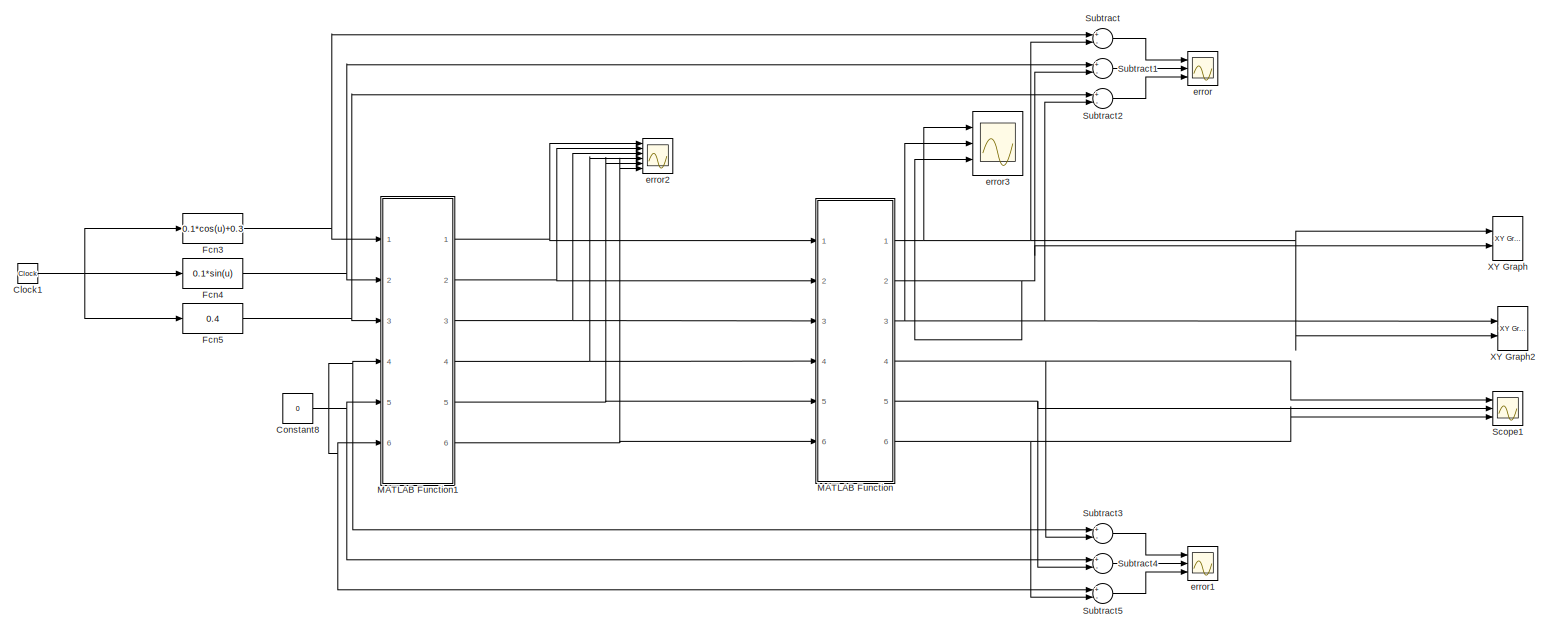
[diagram: root canvas - part 1/1, most of the canvas]
MODEL slx_f7196f34413f
KIND model
CONFIG AbsTol = auto
CONFIG EnableMultiTasking = off
CONFIG FixedStep = auto
CONFIG MaxStep = auto
CONFIG MinStep = auto
CONFIG RelTol = 1e-3
CONFIG SampleTimeConstraint = Unconstrained
CONFIG Solver = VariableStepAuto
CONFIG SolverName = VariableStepAuto
CONFIG StartTime = 0.0
CONFIG StopTime = 10
BLOCK [Clock] Clock1
BLOCK [Constant] Constant8
  Value = 0
BLOCK [Fcn] Fcn3
  Expr = 0.1*cos(u)+0.3
BLOCK [Fcn] Fcn4
  Expr = 0.1*sin(u)
BLOCK [Fcn] Fcn5
  Expr = 0.4
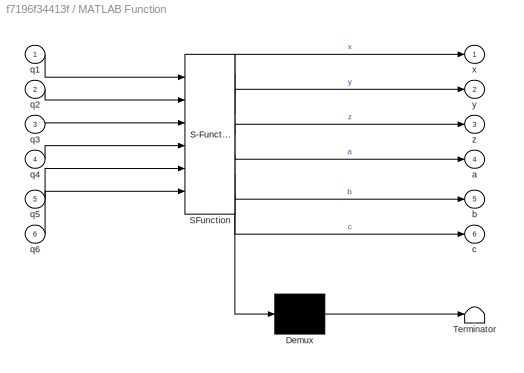
BLOCK [SubSystem] MATLAB Function
  ErrorFcn = Stateflow.Translate.translate
  PermitHierarchicalResolution = ExplicitOnly
  Ports = [6, 6]
  RequestExecContextInheritance = off
  SFBlockType = MATLAB Function
  TreatAsAtomicUnit = on
BLOCK [Demux] MATLAB Function/ Demux 
  Outputs = 1
  Ports = [1, 1]
BLOCK [S-Function] MATLAB Function/ SFunction 
  EnableBusSupport = on
  FunctionName = sf_sfun
  PortCounts = [6 7]
  Ports = [6, 7]
  SFcnIsStateOwnerBlock = off
  SFunctionDeploymentMode = off
  Tag = Stateflow S-Function main 2
BLOCK [Terminator] MATLAB Function/ Terminator 
BLOCK [Outport] MATLAB Function/a
  IconDisplay = Port number
  Port = 4
BLOCK [Outport] MATLAB Function/b
  IconDisplay = Port number
  Port = 5
BLOCK [Outport] MATLAB Function/c
  IconDisplay = Port number
  Port = 6
BLOCK [Inport] MATLAB Function/q1
  IconDisplay = Port number
BLOCK [Inport] MATLAB Function/q2
  IconDisplay = Port number
  Port = 2
BLOCK [Inport] MATLAB Function/q3
  IconDisplay = Port number
  Port = 3
BLOCK [Inport] MATLAB Function/q4
  IconDisplay = Port number
  Port = 4
BLOCK [Inport] MATLAB Function/q5
  IconDisplay = Port number
  Port = 5
BLOCK [Inport] MATLAB Function/q6
  IconDisplay = Port number
  Port = 6
BLOCK [Outport] MATLAB Function/x
  IconDisplay = Port number
BLOCK [Outport] MATLAB Function/y
  IconDisplay = Port number
  Port = 2
BLOCK [Outport] MATLAB Function/z
  IconDisplay = Port number
  Port = 3
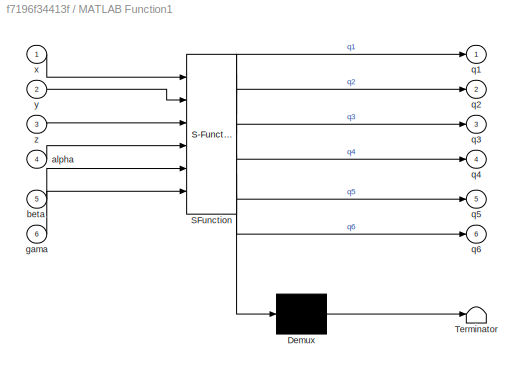
BLOCK [SubSystem] MATLAB Function1
  ErrorFcn = Stateflow.Translate.translate
  PermitHierarchicalResolution = ExplicitOnly
  Ports = [6, 6]
  RequestExecContextInheritance = off
  SFBlockType = MATLAB Function
  TreatAsAtomicUnit = on
BLOCK [Demux] MATLAB Function1/ Demux 
  Outputs = 1
  Ports = [1, 1]
BLOCK [S-Function] MATLAB Function1/ SFunction 
  EnableBusSupport = on
  FunctionName = sf_sfun
  PortCounts = [6 7]
  Ports = [6, 7]
  SFcnIsStateOwnerBlock = off
  SFunctionDeploymentMode = off
  Tag = Stateflow S-Function main 3
BLOCK [Terminator] MATLAB Function1/ Terminator 
BLOCK [Inport] MATLAB Function1/alpha
  IconDisplay = Port number
  Port = 4
BLOCK [Inport] MATLAB Function1/beta
  IconDisplay = Port number
  Port = 5
BLOCK [Inport] MATLAB Function1/gama
  IconDisplay = Port number
  Port = 6
BLOCK [Outport] MATLAB Function1/q1
  IconDisplay = Port number
BLOCK [Outport] MATLAB Function1/q2
  IconDisplay = Port number
  Port = 2
BLOCK [Outport] MATLAB Function1/q3
  IconDisplay = Port number
  Port = 3
BLOCK [Outport] MATLAB Function1/q4
  IconDisplay = Port number
  Port = 4
BLOCK [Outport] MATLAB Function1/q5
  IconDisplay = Port number
  Port = 5
BLOCK [Outport] MATLAB Function1/q6
  IconDisplay = Port number
  Port = 6
BLOCK [Inport] MATLAB Function1/x
  IconDisplay = Port number
BLOCK [Inport] MATLAB Function1/y
  IconDisplay = Port number
  Port = 2
BLOCK [Inport] MATLAB Function1/z
  IconDisplay = Port number
  Port = 3
BLOCK [Scope] Scope1
  Floating = off
  NumInputPorts = 3
  Ports = [3]
  ScopeSpecificationString = Simulink.scopes.TimeScopeBlockCfg('CurrentConfiguration', extmgr.ConfigurationSet(extmgr.Configuration('Core','General UI',true),extmgr.Configuration('Core','Source UI',true),extmgr.Configuration('Sources','WiredSimulink',true,'DataLoggingVariableName','ScopeData1'),extmgr.Configuration('Visuals','Time Domain',true,'SerializedDisplays',{struct('MinYLimReal','0.65778','MaxYLimReal','1.934','YLabelR...<+1406ch>
BLOCK [Sum] Subtract
  InputSameDT = off
  Inputs = +-
  OutDataTypeStr = Inherit: Inherit via internal rule
  Ports = [2, 1]
  SaturateOnIntegerOverflow = off
BLOCK [Sum] Subtract1
  InputSameDT = off
  Inputs = +-
  OutDataTypeStr = Inherit: Inherit via internal rule
  Ports = [2, 1]
  SaturateOnIntegerOverflow = off
BLOCK [Sum] Subtract2
  InputSameDT = off
  Inputs = +-
  OutDataTypeStr = Inherit: Inherit via internal rule
  Ports = [2, 1]
  SaturateOnIntegerOverflow = off
BLOCK [Sum] Subtract3
  InputSameDT = off
  Inputs = +-
  OutDataTypeStr = Inherit: Inherit via internal rule
  Ports = [2, 1]
  SaturateOnIntegerOverflow = off
BLOCK [Sum] Subtract4
  InputSameDT = off
  Inputs = +-
  OutDataTypeStr = Inherit: Inherit via internal rule
  Ports = [2, 1]
  SaturateOnIntegerOverflow = off
BLOCK [Sum] Subtract5
  InputSameDT = off
  Inputs = +-
  OutDataTypeStr = Inherit: Inherit via internal rule
  Ports = [2, 1]
  SaturateOnIntegerOverflow = off
BLOCK [Reference] XY Graph  REF=simulink/Sinks/XY Graph
  Ports = [2]
  SourceBlock = simulink/Sinks/XY Graph
  SourceProductBaseCode = SL
  SourceProductName = Simulink
  SourceType = XY scope.
BLOCK [Reference] XY Graph2  REF=simulink/Sinks/XY Graph
  Ports = [2]
  SourceBlock = simulink/Sinks/XY Graph
  SourceProductBaseCode = SL
  SourceProductName = Simulink
  SourceType = XY scope.
BLOCK [Scope] error
  Floating = off
  NumInputPorts = 3
  Ports = [3]
  ScopeSpecificationString = Simulink.scopes.TimeScopeBlockCfg('CurrentConfiguration', extmgr.ConfigurationSet(extmgr.Configuration('Core','General UI',true),extmgr.Configuration('Core','Source UI',true),extmgr.Configuration('Sources','WiredSimulink',true,'DataLoggingVariableName','ScopeData1'),extmgr.Configuration('Visuals','Time Domain',true,'SerializedDisplays',{struct('MinYLimReal','-0.69249','MaxYLimReal','1.00534','YLab...<+1391ch>
BLOCK [Scope] error1
  Floating = off
  NumInputPorts = 3
  Ports = [3]
  ScopeSpecificationString = Simulink.scopes.TimeScopeBlockCfg('CurrentConfiguration', extmgr.ConfigurationSet(extmgr.Configuration('Core','General UI',true),extmgr.Configuration('Core','Source UI',true),extmgr.Configuration('Sources','WiredSimulink',true,'DataLoggingVariableName','ScopeData2'),extmgr.Configuration('Visuals','Time Domain',true,'SerializedDisplays',{struct('MinYLimReal','-1.934','MaxYLimReal','-0.65778','YLabe...<+1386ch>
BLOCK [Scope] error2
  Floating = off
  NumInputPorts = 6
  Ports = [6]
  ScopeSpecificationString = Simulink.scopes.TimeScopeBlockCfg('CurrentConfiguration', extmgr.ConfigurationSet(extmgr.Configuration('Core','General UI',true),extmgr.Configuration('Core','Source UI',true),extmgr.Configuration('Sources','WiredSimulink',true,'DataLoggingVariableName','ScopeData1'),extmgr.Configuration('Visuals','Time Domain',true,'SerializedDisplays',{struct('MinYLimReal','-4.95035','MaxYLimReal','4.41829','YLab...<+1488ch>
BLOCK [Scope] error3
  Floating = off
  NumInputPorts = 3
  Ports = [3]
  ScopeSpecificationString = Simulink.scopes.TimeScopeBlockCfg('CurrentConfiguration', extmgr.ConfigurationSet(extmgr.Configuration('Core','General UI',true),extmgr.Configuration('Core','Source UI',true),extmgr.Configuration('Sources','WiredSimulink',true,'DataLoggingVariableName','ScopeData2'),extmgr.Configuration('Visuals','Time Domain',true,'SerializedDisplays',{struct('MinYLimReal','-0.54626','MaxYLimReal','1.16407','YLab...<+1416ch>
NET Clock1:1 -> Fcn3:1, Fcn4:1, Fcn5:1
NET Constant8:1 -> MATLAB Function1:4, MATLAB Function1:5, MATLAB Function1:6, Subtract3:1, Subtract4:1, Subtract5:1
NET Fcn3:1 -> MATLAB Function1:1, Subtract:1
NET Fcn4:1 -> MATLAB Function1:2, Subtract1:1
NET Fcn5:1 -> MATLAB Function1:3, Subtract2:1
NET MATLAB Function1:1 -> MATLAB Function:1, error2:1
NET MATLAB Function1:2 -> MATLAB Function:2, error2:2
NET MATLAB Function1:3 -> MATLAB Function:3, error2:3
NET MATLAB Function1:4 -> MATLAB Function:4, error2:4
NET MATLAB Function1:5 -> MATLAB Function:5, error2:5
NET MATLAB Function1:6 -> MATLAB Function:6, error2:6
NET MATLAB Function:1 -> Subtract:2, XY Graph2:2, XY Graph:1, error3:1
NET MATLAB Function:2 -> Subtract1:2, XY Graph:2, error3:3
NET MATLAB Function:3 -> Subtract2:2, XY Graph2:1, error3:2
NET MATLAB Function:4 -> Scope1:1, Subtract3:2
NET MATLAB Function:5 -> Scope1:2, Subtract4:2
NET MATLAB Function:6 -> Scope1:3, Subtract5:2
LINE Subtract1:1 -> error:2
LINE Subtract2:1 -> error:3
LINE Subtract3:1 -> error1:1
LINE Subtract4:1 -> error1:2
LINE Subtract5:1 -> error1:3
LINE Subtract:1 -> error:1
note: NET lines group one-source signal fan-out (src -> all destinations, sorted); 1:1 wires keep LINE
CHART MATLAB Function states=1 transitions=1
  STATE_LABEL 'eML_blk_kernel()'
  STATE_LABEL 'SCRIPT:\nfunction [x,y,z,a,b,c] = FK(q1,q2,q3,q4,q5,q6)\n\n% -------------DH_Parametrs--------------------\na0 = 0;     d1 = 0.352;      alpha0 = 0;\na1 = 0.07;    d2 = 0;        alpha1 = -pi/2;\na2 = 0.36;   d3 = 0;        alpha2 = 0;\na3 = 0;     d4 = 0.380;      alpha3 = -pi/2;\na4 = 0;     d5 = 0;        alpha4 = pi/2;\na5 = 0;     d6 = 0;        alpha5 = -pi/2;\n\ntheta1 =q1;\ntheta2 =q2;\ntheta3 =q3;\nthe...<+1119ch>'
CHART MATLAB Function1 states=1 transitions=1
  STATE_LABEL 'eML_blk_kernel()'
  STATE_LABEL 'SCRIPT:\nfunction [q1,q2,q3,q4,q5,q6] = IK_IRB140(x,y,z,alpha,beta,gama) \n% x=0.3;\n% y=0.3;\n% z=0.2;\n% alpha=0;\n% beta=0;\n% gama=0;\n\nd1 = 0.352;\na1 = 0.070;\na2 = 0.360;\nd4 = 0.380;\nd6=0.065;\nq1=0;\nq2=0;\nq3=0;\nq4=0;\nq5=0;\nq6=0;\n\nNOSOLUTION=1000;\n\nQ1= atan2 (y,x);\nQ11= pi + Q1;\n\n\ns = (z - d1);\nr = sqrt((x - a1*cos (Q1))^2 +(y - a1*sin(Q1))^2);\nczeta = (r^2 + s^2 - (a2)^2 - (d4 + d6)^2)/(2 * a2 *(d4 +...<+3608ch>'
